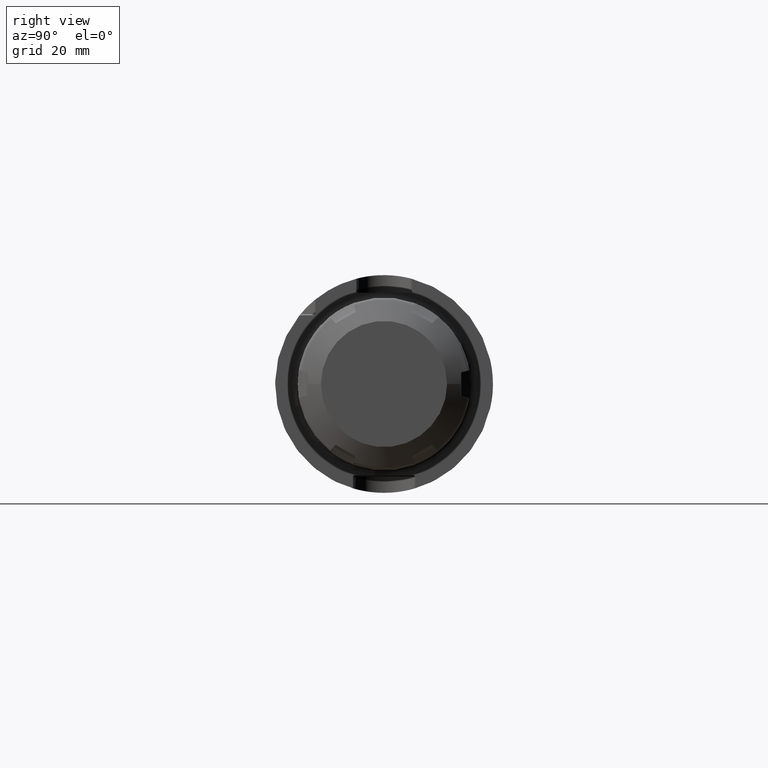
[diagram: clean part render]
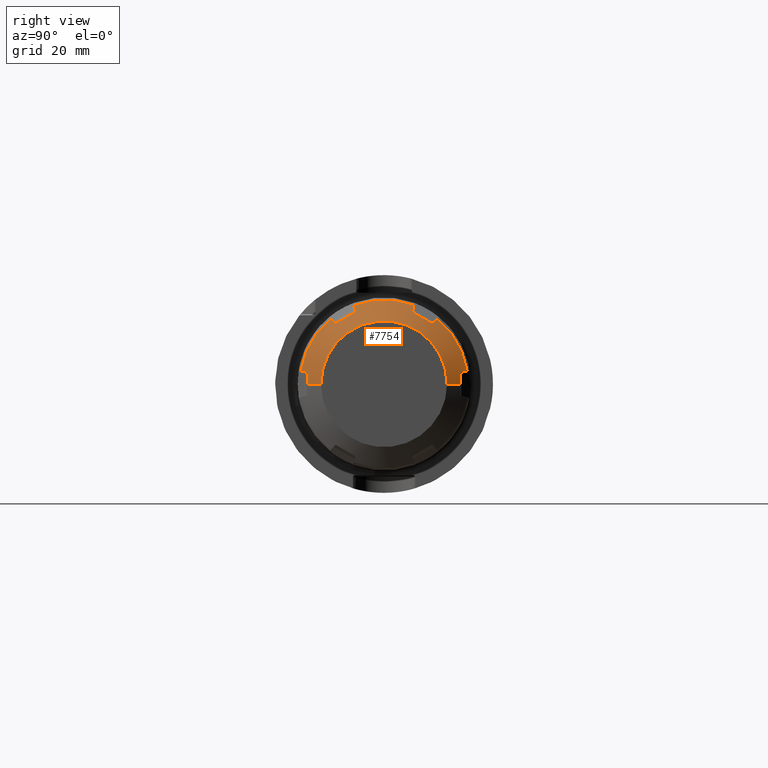
[diagram: same view with one face highlighted and labeled with its STEP entity id]
A machine part, right view. The second image highlights one B-rep face of the part: STEP entity #7754.
In plain terms, the highlighted conical surface has half-angle 60 deg.
Its self-contained STEP definition (entity closure, byte-faithful):
#6691=DIRECTION('',(-5.E-1,-8.660254037844E-1,0.E0));
#6692=VECTOR('',#6691,4.561067126598E0);
#6693=CARTESIAN_POINT('',(2.25E1,-1.825E1,0.E0));
#6694=LINE('',#6693,#6692);
#6700=DIRECTION('',(-5.E-1,8.660254037844E-1,0.E0));
#6701=VECTOR('',#6700,4.561067126598E0);
#6702=CARTESIAN_POINT('',(2.25E1,1.825E1,0.E0));
#6703=LINE('',#6702,#6701);
#6984=CARTESIAN_POINT('',(2.007435737753E1,-2.22E1,3.35E0));
#6985=CARTESIAN_POINT('',(2.010642291935E1,-2.22E1,2.977782663007E0));
#6986=CARTESIAN_POINT('',(2.016009585532E1,-2.22E1,2.233360618265E0));
#6987=CARTESIAN_POINT('',(2.020864465134E1,-2.22E1,1.116836975823E0));
#6988=CARTESIAN_POINT('',(2.021946643670E1,-2.22E1,3.722962341463E-1));
#6989=CARTESIAN_POINT('',(2.021946643670E1,-2.22E1,-4.505137681520E-14));
#6991=CARTESIAN_POINT('',(1.896372960121E1,-2.407423620780E1,3.817299570546E0));
#6992=CARTESIAN_POINT('',(1.915154885340E1,-2.375738600462E1,3.738299942188E0));
#6993=CARTESIAN_POINT('',(1.952447514954E1,-2.312816444792E1,3.581417388109E0));
#6994=CARTESIAN_POINT('',(1.989196990744E1,-2.250789661449E1,3.426767247974E0));
#6995=CARTESIAN_POINT('',(2.007435737753E1,-2.22E1,3.35E0));
#6997=CARTESIAN_POINT('',(1.896372960121E1,0.E0,0.E0));
#6998=DIRECTION('',(-1.E0,0.E0,0.E0));
#6999=DIRECTION('',(0.E0,-9.876609726275E-1,1.566071618686E-1));
#7000=AXIS2_PLACEMENT_3D('',#6997,#6998,#6999);
#7002=CARTESIAN_POINT('',(2.007435737753E1,-1.400118510268E1,1.755076396401E1));
#7003=CARTESIAN_POINT('',(1.989202963548E1,-1.422154361045E1,1.777895187872E1));
#7004=CARTESIAN_POINT('',(1.952459463873E1,-1.466553630405E1,1.823871977204E1));
#7005=CARTESIAN_POINT('',(1.915160861205E1,-1.511608354504E1,1.870527509788E1));
#7006=CARTESIAN_POINT('',(1.896372960121E1,-1.534299650585E1,1.894025034738E1));
#7008=CARTESIAN_POINT('',(2.007435737753E1,-8.198814897322E0,2.090076396401E1));
#7009=CARTESIAN_POINT('',(2.013850261850E1,-8.843656557694E0,2.052846445781E1));
#7010=CARTESIAN_POINT('',(2.022485531472E1,-1.013317723897E1,1.978395934535E1));
#7011=CARTESIAN_POINT('',(2.022485360844E1,-1.206686210227E1,1.866754586900E1));
#7012=CARTESIAN_POINT('',(2.013850094754E1,-1.335636024026E1,1.792305377191E1));
#7013=CARTESIAN_POINT('',(2.007435737753E1,-1.400118510268E1,1.755076396401E1));
#7015=CARTESIAN_POINT('',(1.896372960121E1,-8.731239701949E0,2.275754991793E1));
#7016=CARTESIAN_POINT('',(1.915154885340E1,-8.641230285410E0,2.244364977861E1));
#7017=CARTESIAN_POINT('',(1.952447514954E1,-8.462483784300E0,2.182028664885E1));
#7018=CARTESIAN_POINT('',(1.989196990744E1,-8.286280817645E0,2.120579387789E1));
#7019=CARTESIAN_POINT('',(2.007435737753E1,-8.198814897322E0,2.090076396401E1));
#7021=CARTESIAN_POINT('',(1.896372960121E1,0.E0,0.E0));
#7022=DIRECTION('',(-1.E0,0.E0,0.E0));
#7023=DIRECTION('',(0.E0,-3.582047057210E-1,9.336430735561E-1));
#7024=AXIS2_PLACEMENT_3D('',#7021,#7022,#7023);
#7026=CARTESIAN_POINT('',(2.007435737753E1,8.198814897322E0,2.090076396401E1));
#7027=CARTESIAN_POINT('',(1.989202963548E1,8.286252174404E0,2.120569398704E1));
#7028=CARTESIAN_POINT('',(1.952459463873E1,8.462426503065E0,2.182008688545E1));
#7029=CARTESIAN_POINT('',(1.915160861205E1,8.641201647020E0,2.244354990467E1));
#7030=CARTESIAN_POINT('',(1.896372960121E1,8.731239701949E0,2.275754991793E1));
#7032=CARTESIAN_POINT('',(2.007435737753E1,1.400118510268E1,1.755076396401E1));
#7033=CARTESIAN_POINT('',(2.013850261850E1,1.335634344231E1,1.792306347021E1));
#7034=CARTESIAN_POINT('',(2.022485531472E1,1.206682276103E1,1.866756858268E1));
#7035=CARTESIAN_POINT('',(2.022485360844E1,1.013313789773E1,1.978398205903E1));
#7036=CARTESIAN_POINT('',(2.013850094754E1,8.843639759743E0,2.052847415612E1));
#7037=CARTESIAN_POINT('',(2.007435737753E1,8.198814897322E0,2.090076396401E1));
#7039=CARTESIAN_POINT('',(1.896372960121E1,1.534299650585E1,1.894025034738E1));
#7040=CARTESIAN_POINT('',(1.915154885340E1,1.511615571921E1,1.870534983642E1));
#7041=CARTESIAN_POINT('',(1.952447514954E1,1.466568066362E1,1.823886926074E1));
#7042=CARTESIAN_POINT('',(1.989196990744E1,1.422161579685E1,1.777902662992E1));
#7043=CARTESIAN_POINT('',(2.007435737753E1,1.400118510268E1,1.755076396401E1));
#7045=CARTESIAN_POINT('',(1.896372960121E1,0.E0,0.E0));
#7046=DIRECTION('',(-1.E0,0.E0,0.E0));
#7047=DIRECTION('',(0.E0,6.294562669065E-1,7.770359116876E-1));
#7048=AXIS2_PLACEMENT_3D('',#7045,#7046,#7047);
#7050=CARTESIAN_POINT('',(2.007435737753E1,2.22E1,3.35E0));
#7051=CARTESIAN_POINT('',(1.989202963548E1,2.250779578486E1,3.426742108322E0));
#7052=CARTESIAN_POINT('',(1.952459463873E1,2.312796280711E1,3.581367113410E0));
#7053=CARTESIAN_POINT('',(1.915160861205E1,2.375728519206E1,3.738274806794E0));
#7054=CARTESIAN_POINT('',(1.896372960121E1,2.407423620780E1,3.817299570546E0));
#7056=CARTESIAN_POINT('',(2.021946643670E1,2.22E1,0.E0));
#7057=CARTESIAN_POINT('',(2.021946643670E1,2.22E1,3.723412104007E-1));
#7058=CARTESIAN_POINT('',(2.020864224929E1,2.22E1,1.116942255784E0));
#7059=CARTESIAN_POINT('',(2.016008769471E1,2.22E1,2.233495806650E0));
#7060=CARTESIAN_POINT('',(2.010641792581E1,2.22E1,2.977840628173E0));
#7061=CARTESIAN_POINT('',(2.007435737753E1,2.22E1,3.35E0));
#7063=CARTESIAN_POINT('',(2.25E1,0.E0,0.E0));
#7064=DIRECTION('',(1.E0,0.E0,0.E0));
#7065=DIRECTION('',(0.E0,1.E0,0.E0));
#7066=AXIS2_PLACEMENT_3D('',#7063,#7064,#7065);
#7326=CARTESIAN_POINT('',(2.25E1,1.825E1,0.E0));
#7327=CARTESIAN_POINT('',(2.25E1,-1.825E1,0.E0));
#7328=VERTEX_POINT('',#7326);
#7329=VERTEX_POINT('',#7327);
#7338=VERTEX_POINT('',#7050);
#7339=VERTEX_POINT('',#7054);
#7340=VERTEX_POINT('',#7056);
#7354=VERTEX_POINT('',#7026);
#7355=VERTEX_POINT('',#7030);
#7356=VERTEX_POINT('',#7032);
#7357=VERTEX_POINT('',#7039);
#7369=VERTEX_POINT('',#7002);
#7370=VERTEX_POINT('',#7006);
#7371=VERTEX_POINT('',#7008);
#7372=VERTEX_POINT('',#7015);
#7384=VERTEX_POINT('',#6984);
#7385=VERTEX_POINT('',#6989);
#7386=VERTEX_POINT('',#6991);
#7723=CARTESIAN_POINT('',(2.073186480061E1,0.E0,0.E0));
#7724=DIRECTION('',(-1.E0,0.E0,0.E0));
#7725=DIRECTION('',(0.E0,1.E0,0.E0));
#7726=AXIS2_PLACEMENT_3D('',#7723,#7724,#7725);
#7727=CONICAL_SURFACE('',#7726,2.13125E1,6.E1);
#7729=ORIENTED_EDGE('',*,*,#7728,.F.);
#7731=ORIENTED_EDGE('',*,*,#7730,.F.);
#7732=ORIENTED_EDGE('',*,*,#7630,.T.);
#7734=ORIENTED_EDGE('',*,*,#7733,.F.);
#7736=ORIENTED_EDGE('',*,*,#7735,.F.);
#7738=ORIENTED_EDGE('',*,*,#7737,.F.);
#7739=ORIENTED_EDGE('',*,*,#7614,.T.);
#7741=ORIENTED_EDGE('',*,*,#7740,.F.);
#7742=ORIENTED_EDGE('',*,*,#7716,.F.);
#7743=ORIENTED_EDGE('',*,*,#7687,.F.);
#7744=ORIENTED_EDGE('',*,*,#7598,.T.);
#7746=ORIENTED_EDGE('',*,*,#7745,.F.);
#7748=ORIENTED_EDGE('',*,*,#7747,.F.);
#7749=ORIENTED_EDGE('',*,*,#7474,.F.);
#7750=ORIENTED_EDGE('',*,*,#7441,.T.);
#7751=ORIENTED_EDGE('',*,*,#7471,.T.);
#7752=EDGE_LOOP('',(#7729,#7731,#7732,#7734,#7736,#7738,#7739,#7741,#7742,#7743,
#7744,#7746,#7748,#7749,#7750,#7751));
#7753=FACE_OUTER_BOUND('',#7752,.F.);
#7754=ADVANCED_FACE('',(#7753),#7727,.T.);
#6990=B_SPLINE_CURVE_WITH_KNOTS('',3,(#6984,#6985,#6986,#6987,#6988,#6989),
.UNSPECIFIED.,.F.,.F.,(4,1,1,4),(0.E0,3.333333333333E-1,6.666666666667E-1,1.E0),
.UNSPECIFIED.);
#6996=B_SPLINE_CURVE_WITH_KNOTS('',3,(#6991,#6992,#6993,#6994,#6995),
.UNSPECIFIED.,.F.,.F.,(4,1,4),(0.E0,5.E-1,1.E0),.UNSPECIFIED.);
#7001=CIRCLE('',#7000,2.4375E1);
#7007=B_SPLINE_CURVE_WITH_KNOTS('',3,(#7002,#7003,#7004,#7005,#7006),
.UNSPECIFIED.,.F.,.F.,(4,1,4),(0.E0,5.E-1,1.E0),.UNSPECIFIED.);
#7014=B_SPLINE_CURVE_WITH_KNOTS('',3,(#7008,#7009,#7010,#7011,#7012,#7013),
.UNSPECIFIED.,.F.,.F.,(4,1,1,4),(0.E0,3.333333333333E-1,6.666666666667E-1,1.E0),
.UNSPECIFIED.);
#7020=B_SPLINE_CURVE_WITH_KNOTS('',3,(#7015,#7016,#7017,#7018,#7019),
.UNSPECIFIED.,.F.,.F.,(4,1,4),(0.E0,5.E-1,1.E0),.UNSPECIFIED.);
#7025=CIRCLE('',#7024,2.4375E1);
#7031=B_SPLINE_CURVE_WITH_KNOTS('',3,(#7026,#7027,#7028,#7029,#7030),
.UNSPECIFIED.,.F.,.F.,(4,1,4),(0.E0,5.E-1,1.E0),.UNSPECIFIED.);
#7038=B_SPLINE_CURVE_WITH_KNOTS('',3,(#7032,#7033,#7034,#7035,#7036,#7037),
.UNSPECIFIED.,.F.,.F.,(4,1,1,4),(0.E0,3.333333333333E-1,6.666666666667E-1,1.E0),
.UNSPECIFIED.);
#7044=B_SPLINE_CURVE_WITH_KNOTS('',3,(#7039,#7040,#7041,#7042,#7043),
.UNSPECIFIED.,.F.,.F.,(4,1,4),(0.E0,5.E-1,1.E0),.UNSPECIFIED.);
#7049=CIRCLE('',#7048,2.4375E1);
#7055=B_SPLINE_CURVE_WITH_KNOTS('',3,(#7050,#7051,#7052,#7053,#7054),
.UNSPECIFIED.,.F.,.F.,(4,1,4),(0.E0,5.E-1,1.E0),.UNSPECIFIED.);
#7062=B_SPLINE_CURVE_WITH_KNOTS('',3,(#7056,#7057,#7058,#7059,#7060,#7061),
.UNSPECIFIED.,.F.,.F.,(4,1,1,4),(0.E0,3.333333333333E-1,6.666666666667E-1,1.E0),
.UNSPECIFIED.);
#7067=CIRCLE('',#7066,1.825E1);
#7441=EDGE_CURVE('',#7328,#7329,#7067,.T.);
#7471=EDGE_CURVE('',#7329,#7385,#6694,.T.);
#7474=EDGE_CURVE('',#7328,#7340,#6703,.T.);
#7598=EDGE_CURVE('',#7357,#7339,#7049,.T.);
#7614=EDGE_CURVE('',#7372,#7355,#7025,.T.);
#7630=EDGE_CURVE('',#7386,#7370,#7001,.T.);
#7687=EDGE_CURVE('',#7357,#7356,#7044,.T.);
#7716=EDGE_CURVE('',#7356,#7354,#7038,.T.);
#7728=EDGE_CURVE('',#7384,#7385,#6990,.T.);
#7730=EDGE_CURVE('',#7386,#7384,#6996,.T.);
#7733=EDGE_CURVE('',#7369,#7370,#7007,.T.);
#7735=EDGE_CURVE('',#7371,#7369,#7014,.T.);
#7737=EDGE_CURVE('',#7372,#7371,#7020,.T.);
#7740=EDGE_CURVE('',#7354,#7355,#7031,.T.);
#7745=EDGE_CURVE('',#7338,#7339,#7055,.T.);
#7747=EDGE_CURVE('',#7340,#7338,#7062,.T.);